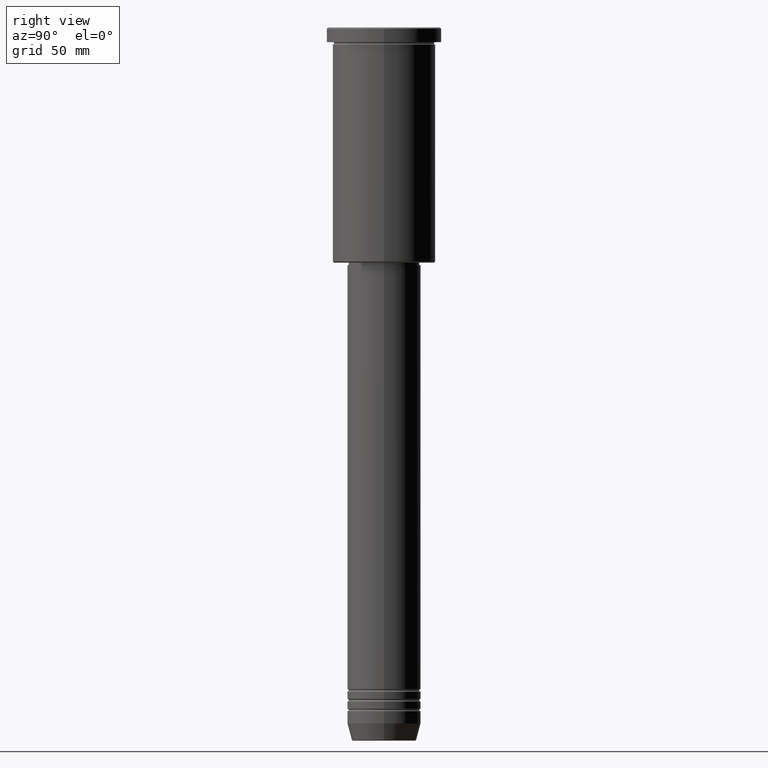
[diagram: clean part render]
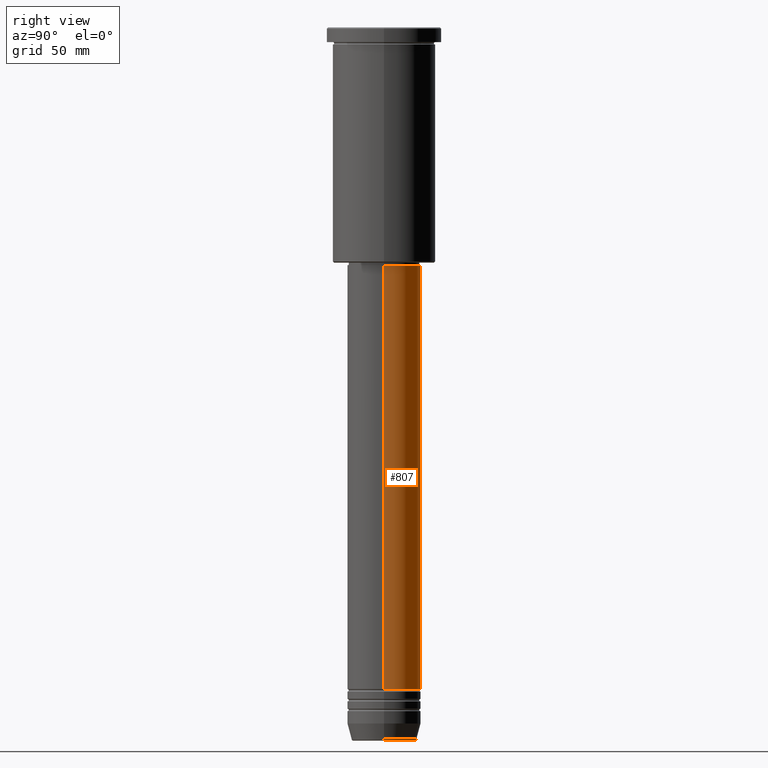
[diagram: same view with one face highlighted and labeled with its STEP entity id]
A machine part, right view. The second image highlights one B-rep face of the part: STEP entity #807.
In plain terms, the highlighted cylindrical surface (partial cylindrical patch) has radius 15 mm, axis along (-0, -0, 1).
Its self-contained STEP definition (entity closure, byte-faithful):
#77 = DIRECTION ( 'NONE',  ( 1.000000000000000000, 0.000000000000000000, 0.000000000000000000 ) ) ;
#88 = VECTOR ( 'NONE', #786, 1000.000000000000000 ) ;
#104 = CARTESIAN_POINT ( 'NONE',  ( -15.00000000000000000, 1.836970198721029589E-15, -96.99999999999994316 ) ) ;
#159 = CARTESIAN_POINT ( 'NONE',  ( 15.00000000000000000, 0.000000000000000000, -96.99999999999994316 ) ) ;
#171 = VERTEX_POINT ( 'NONE', #954 ) ;
#193 = EDGE_CURVE ( 'NONE', #1174, #346, #599, .T. ) ;
#206 = CIRCLE ( 'NONE', #507, 15.00000000000000000 ) ;
#224 = ORIENTED_EDGE ( 'NONE', *, *, #480, .F. ) ;
#278 = AXIS2_PLACEMENT_3D ( 'NONE', #994, #831, #920 ) ;
#289 = DIRECTION ( 'NONE',  ( -0.000000000000000000, -0.000000000000000000, 1.000000000000000000 ) ) ;
#304 = CYLINDRICAL_SURFACE ( 'NONE', #664, 15.00000000000000000 ) ;
#309 = LINE ( 'NONE', #331, #88 ) ;
#312 = CARTESIAN_POINT ( 'NONE',  ( -15.00000000000000000, 1.836970198721029589E-15, -269.9999999999998863 ) ) ;
#323 = ORIENTED_EDGE ( 'NONE', *, *, #193, .F. ) ;
#331 = CARTESIAN_POINT ( 'NONE',  ( 15.00000000000000000, 0.000000000000000000, 0.000000000000000000 ) ) ;
#346 = VERTEX_POINT ( 'NONE', #104 ) ;
#480 = EDGE_CURVE ( 'NONE', #171, #1174, #309, .T. ) ;
#507 = AXIS2_PLACEMENT_3D ( 'NONE', #620, #629, #77 ) ;
#510 = DIRECTION ( 'NONE',  ( -0.000000000000000000, -0.000000000000000000, 1.000000000000000000 ) ) ;
#599 = CIRCLE ( 'NONE', #278, 15.00000000000000000 ) ;
#620 = CARTESIAN_POINT ( 'NONE',  ( 0.000000000000000000, 0.000000000000000000, -269.9999999999998863 ) ) ;
#629 = DIRECTION ( 'NONE',  ( -0.000000000000000000, -0.000000000000000000, 1.000000000000000000 ) ) ;
#657 = DIRECTION ( 'NONE',  ( 1.000000000000000000, 0.000000000000000000, 0.000000000000000000 ) ) ;
#664 = AXIS2_PLACEMENT_3D ( 'NONE', #1104, #289, #657 ) ;
#675 = FACE_OUTER_BOUND ( 'NONE', #814, .T. ) ;
#684 = LINE ( 'NONE', #1145, #985 ) ;
#786 = DIRECTION ( 'NONE',  ( -0.000000000000000000, -0.000000000000000000, 1.000000000000000000 ) ) ;
#807 = ADVANCED_FACE ( 'NONE', ( #675 ), #304, .T. ) ;
#814 = EDGE_LOOP ( 'NONE', ( #1086, #1074, #323, #224 ) ) ;
#831 = DIRECTION ( 'NONE',  ( -0.000000000000000000, -0.000000000000000000, 1.000000000000000000 ) ) ;
#920 = DIRECTION ( 'NONE',  ( 1.000000000000000000, 0.000000000000000000, 0.000000000000000000 ) ) ;
#935 = EDGE_CURVE ( 'NONE', #1051, #346, #684, .T. ) ;
#954 = CARTESIAN_POINT ( 'NONE',  ( 15.00000000000000000, 0.000000000000000000, -269.9999999999998863 ) ) ;
#985 = VECTOR ( 'NONE', #510, 1000.000000000000000 ) ;
#994 = CARTESIAN_POINT ( 'NONE',  ( 0.000000000000000000, 0.000000000000000000, -96.99999999999994316 ) ) ;
#1051 = VERTEX_POINT ( 'NONE', #312 ) ;
#1074 = ORIENTED_EDGE ( 'NONE', *, *, #935, .T. ) ;
#1086 = ORIENTED_EDGE ( 'NONE', *, *, #1108, .T. ) ;
#1104 = CARTESIAN_POINT ( 'NONE',  ( 0.000000000000000000, 0.000000000000000000, 0.000000000000000000 ) ) ;
#1108 = EDGE_CURVE ( 'NONE', #171, #1051, #206, .T. ) ;
#1145 = CARTESIAN_POINT ( 'NONE',  ( -15.00000000000000000, 1.836970198721029589E-15, 0.000000000000000000 ) ) ;
#1174 = VERTEX_POINT ( 'NONE', #159 ) ;